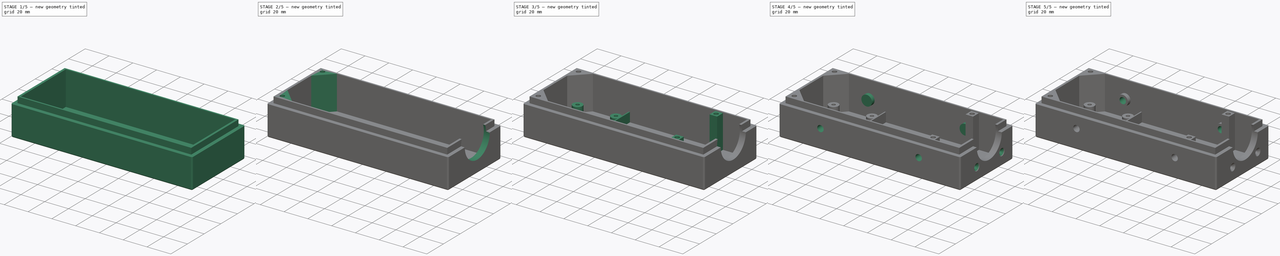
[diagram: build sequence overview — one tinted view per stage of 5, left to right]
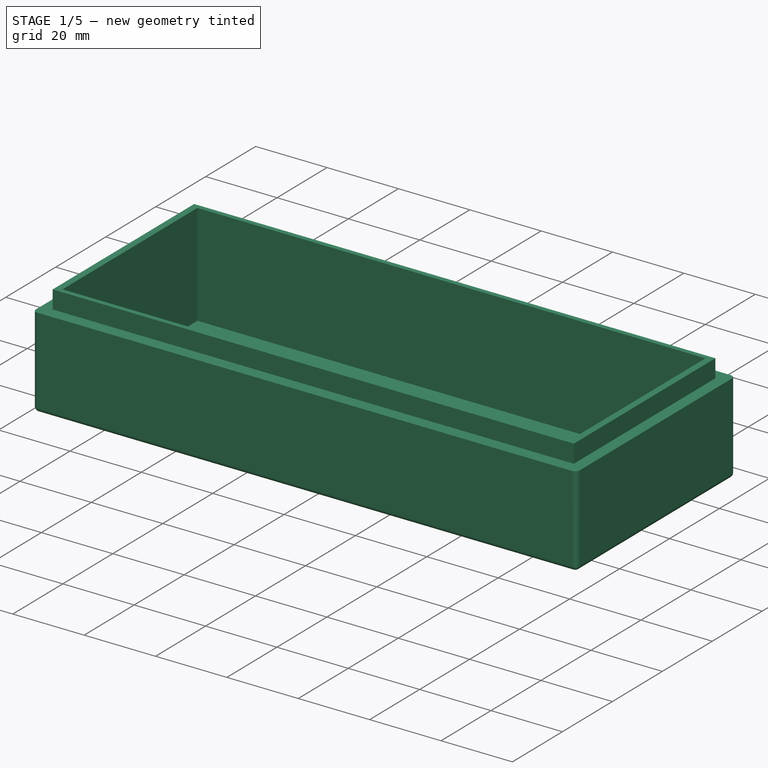
[diagram: stage 1 of 5 — iso view after this stage's code; geometry added in this stage tinted green]
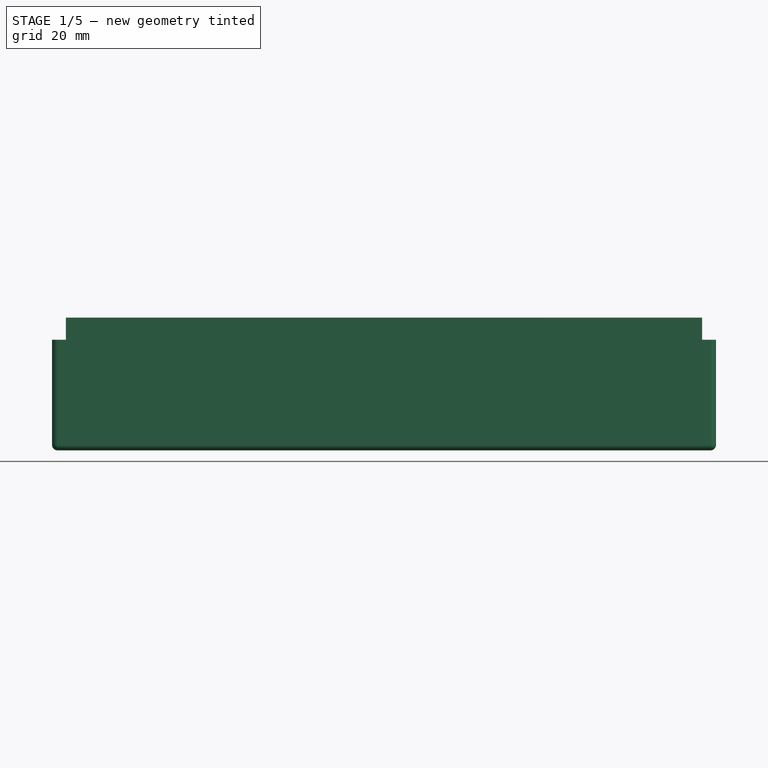
[diagram: stage 1 of 5 — front view after this stage's code; geometry added in this stage tinted green]
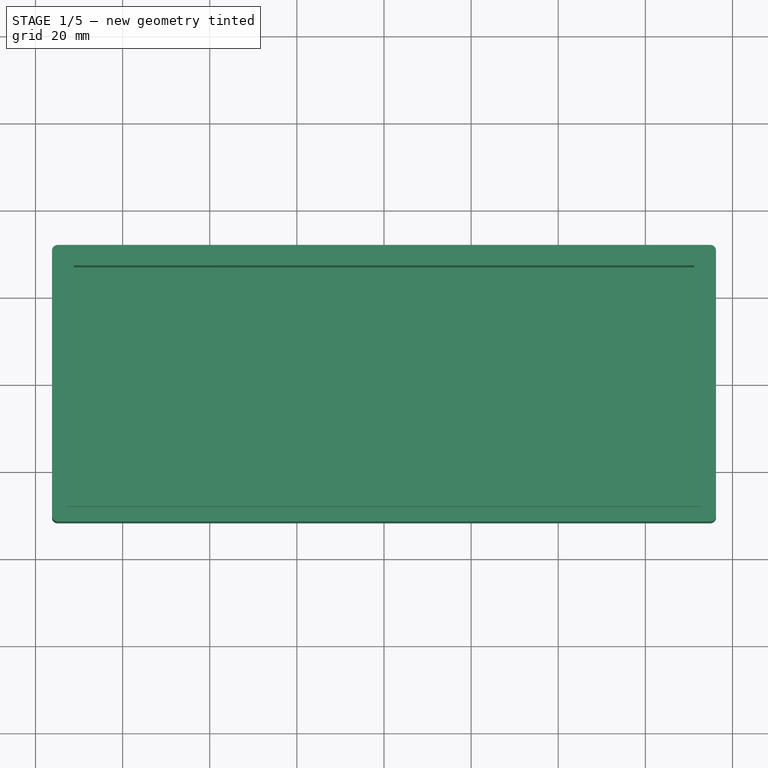
[diagram: stage 1 of 5 — top view after this stage's code; geometry added in this stage tinted green]
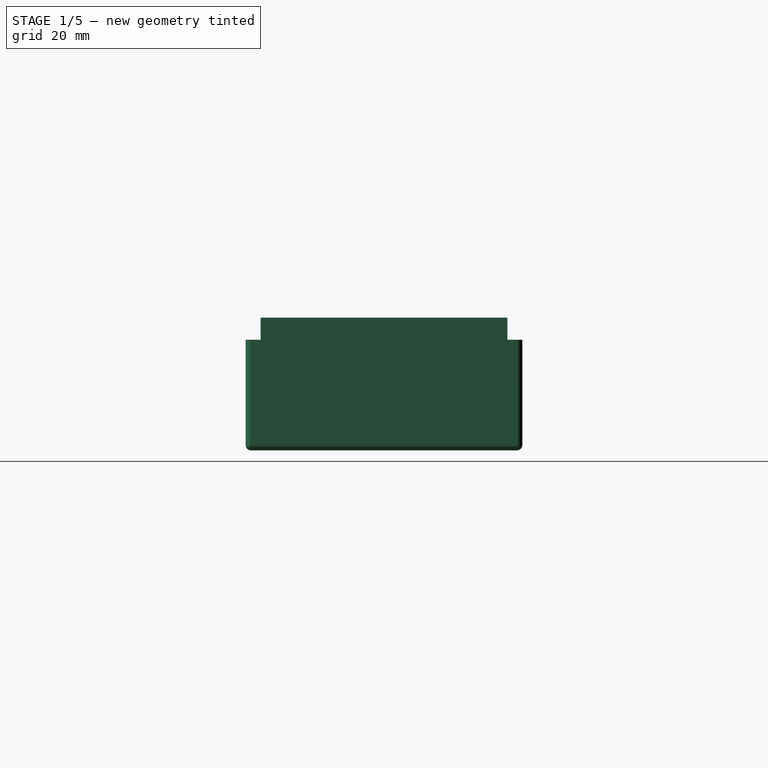
[diagram: stage 1 of 5 — right view after this stage's code; geometry added in this stage tinted green]
FCSTD DOCUMENT  (FreeCAD 1.0R39109 (Git))
Label: RiserTop3
License: All rights reserved
LicenseURL: https://en.wikipedia.org/wiki/All_rights_reserved
objects: Sketcher::SketchObject×19, PartDesign::Pad×8, PartDesign::Hole×6, PartDesign::Pocket×5, PartDesign::Fillet×1, PartDesign::Chamfer×1, PartDesign::Body×1
note: 102 computed .brp shape members not serialized (recipe doc carries the construction recipe); baked Part::Feature solids carry a one-line shape summary decoded from their .brp

FEATURE [Sketcher::SketchObject] Sketch
  ArcFitTolerance = 1e-06
  AttachmentSupport = -> [XY_Plane]
  FullyConstrained = true
  MakeInternals = false
  MapMode = 5
  sketch-geometry (4):
    g0: LineSegment StartX=-76.2 StartY=31.75 StartZ=0 EndX=-76.2 EndY=-31.75 EndZ=0
    g1: LineSegment StartX=-76.2 StartY=-31.75 StartZ=0 EndX=76.2 EndY=-31.75 EndZ=0
    g2: LineSegment StartX=76.2 StartY=-31.75 StartZ=0 EndX=76.2 EndY=31.75 EndZ=0
    g3: LineSegment StartX=76.2 StartY=31.75 StartZ=0 EndX=-76.2 EndY=31.75 EndZ=0
  constraints (11):
    c: Coincident(g0,g1)
    c: Coincident(g1,g2)
    c: Coincident(g2,g3)
    c: Coincident(g3,g0)
    c: Vertical(g0)
    c: Vertical(g2)
    c: Horizontal(g1)
    c: Horizontal(g3)
    c: Distance(g3,g3) = 152.4
    c: Distance(g0,g0) = 63.5
    c: Symmetric(g2,g0,g-1)
FEATURE [PartDesign::Pad] Pad
  Direction = (0,0,1)
  Length = 25.4
  Length2 = 10
  Profile = -> Sketch
  ReferenceAxis = -> Sketch [N_Axis]
  Refine = true
  Suppressed = false
  Type = 0
FEATURE [Sketcher::SketchObject] Sketch001
  ArcFitTolerance = 1e-06
  AttachmentSupport = -> [Pad]
  FullyConstrained = true
  MakeInternals = false
  MapMode = 5
  Placement = pos=(0,0,25.4) rot=(0,0,1;0rad)
  sketch-geometry (4):
    g0: LineSegment StartX=-73.025 StartY=28.321 StartZ=0 EndX=-73.025 EndY=-28.321 EndZ=0
    g1: LineSegment StartX=-73.025 StartY=-28.321 StartZ=0 EndX=73.025 EndY=-28.321 EndZ=0
    g2: LineSegment StartX=73.025 StartY=-28.321 StartZ=0 EndX=73.025 EndY=28.321 EndZ=0
    g3: LineSegment StartX=73.025 StartY=28.321 StartZ=0 EndX=-73.025 EndY=28.321 EndZ=0
  constraints (11):
    c: Coincident(g0,g1)
    c: Coincident(g1,g2)
    c: Coincident(g2,g3)
    c: Coincident(g3,g0)
    c: Vertical(g0)
    c: Vertical(g2)
    c: Horizontal(g1)
    c: Horizontal(g3)
    c: Distance(g3,g3) = 146.05
    c: Distance(g0,g0) = 56.642
    c: Symmetric(g2,g0,g-1)
FEATURE [PartDesign::Pad] Pad001
  BaseFeature = -> Pad
  Direction = (0,0,1)
  Length = 5.08
  Length2 = 10
  Profile = -> Sketch001
  ReferenceAxis = -> Sketch001 [N_Axis]
  Refine = true
  Suppressed = false
  Type = 0
FEATURE [Sketcher::SketchObject] Sketch002
  ArcFitTolerance = 1e-06
  AttachmentSupport = -> [Pad001]
  FullyConstrained = true
  MakeInternals = false
  MapMode = 5
  Placement = pos=(0,0,30.48) rot=(0,0,1;0rad)
  sketch-geometry (4):
    g0: LineSegment StartX=-71.1835 StartY=26.9875 StartZ=0 EndX=-71.1835 EndY=-26.9875 EndZ=0
    g1: LineSegment StartX=-71.1835 StartY=-26.9875 StartZ=0 EndX=71.1835 EndY=-26.9875 EndZ=0
    g2: LineSegment StartX=71.1835 StartY=-26.9875 StartZ=0 EndX=71.1835 EndY=26.9875 EndZ=0
    g3: LineSegment StartX=71.1835 StartY=26.9875 StartZ=0 EndX=-71.1835 EndY=26.9875 EndZ=0
  constraints (11):
    c: Coincident(g0,g1)
    c: Coincident(g1,g2)
    c: Coincident(g2,g3)
    c: Coincident(g3,g0)
    c: Vertical(g0)
    c: Vertical(g2)
    c: Horizontal(g1)
    c: Horizontal(g3)
    c: Distance(g3,g3) = 142.367
    c: Distance(g0,g0) = 53.975
    c: Symmetric(g2,g0,g-1)
FEATURE [PartDesign::Pocket] Pocket
  BaseFeature = -> Pad001
  Direction = (0,0,-1)
  Length = 28.575
  Length2 = 5
  Profile = -> Sketch002
  ReferenceAxis = -> Sketch002 [N_Axis]
  Refine = true
  Suppressed = false
  Type = 0
FEATURE [PartDesign::Fillet] Fillet
  Base = -> Pocket [Edge6,Edge3,Edge9,Edge11,Edge1,Edge5,Edge8,Edge2]
  BaseFeature = -> Pocket
  Radius = 1.27
  Refine = true
  SupportTransform = false
  Suppressed = false
  UseAllEdges = false
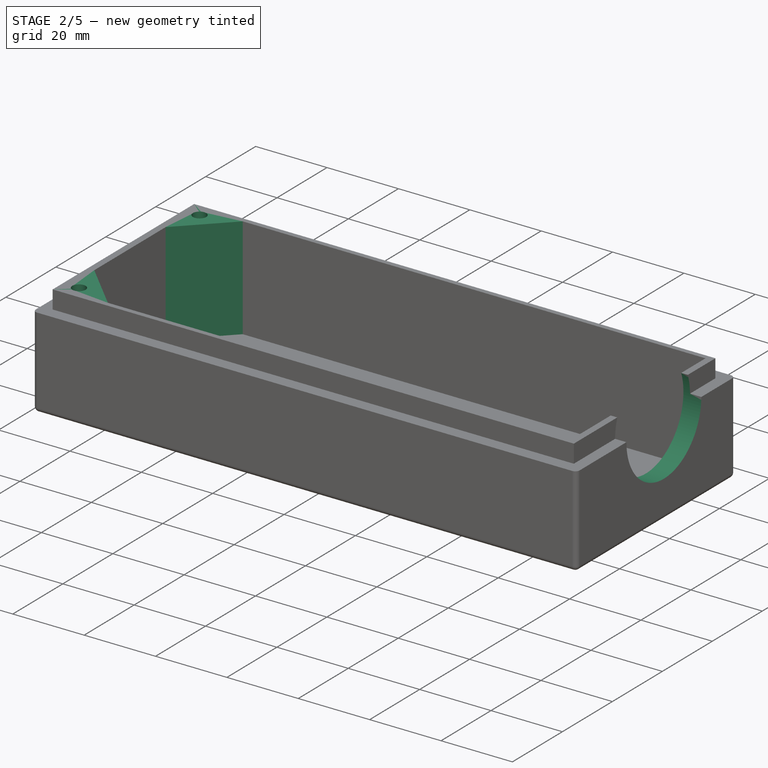
[diagram: stage 2 of 5 — iso view after this stage's code; geometry added in this stage tinted green]
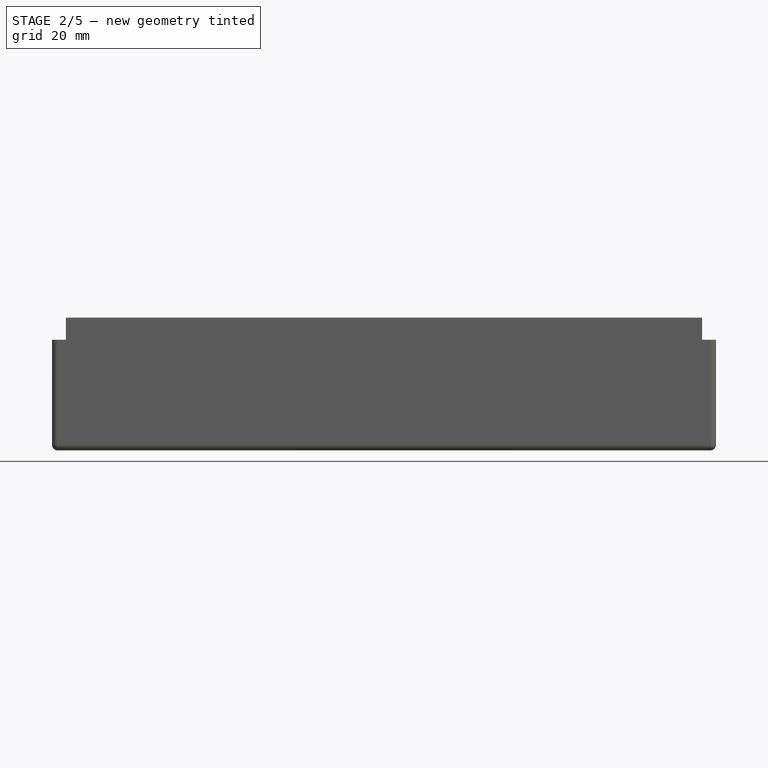
[diagram: stage 2 of 5 — front view after this stage's code; geometry added in this stage tinted green]
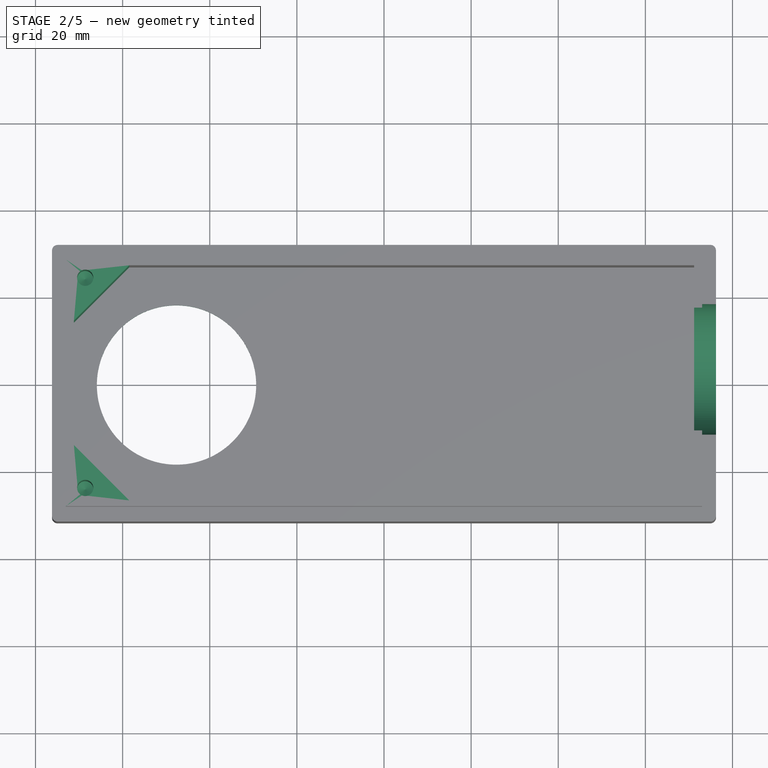
[diagram: stage 2 of 5 — top view after this stage's code; geometry added in this stage tinted green]
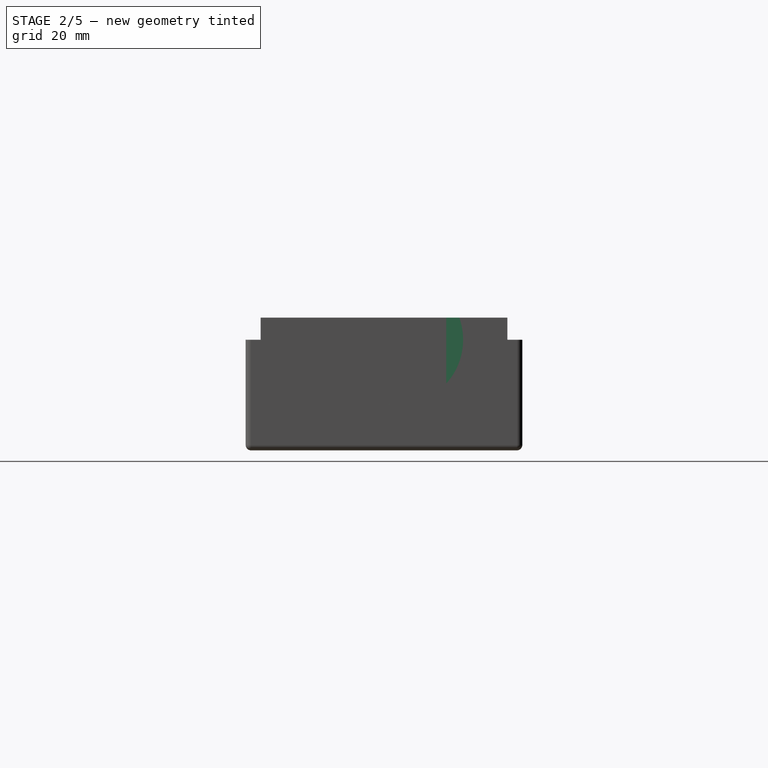
[diagram: stage 2 of 5 — right view after this stage's code; geometry added in this stage tinted green]
FEATURE [PartDesign::Chamfer] Chamfer
  Angle = 45
  Base = -> Fillet [Edge57,Edge58]
  BaseFeature = -> Fillet
  ChamferType = 0
  FlipDirection = false
  Refine = true
  Size = 12.7
  Size2 = 1
  SupportTransform = false
  Suppressed = false
  UseAllEdges = false
FEATURE [Sketcher::SketchObject] Sketch003
  ArcFitTolerance = 1e-06
  AttachmentSupport = -> [Chamfer]
  ExternalGeometry = -> [Chamfer]
  FullyConstrained = true
  MakeInternals = false
  MapMode = 5
  Placement = pos=(0,0,30.48) rot=(0,0,1;0rad)
  sketch-geometry (2):
    g0: Circle CenterX=-68.58 CenterY=24.13 CenterZ=0 NormalX=0 NormalY=0 NormalZ=1 AngleXU=0 Radius=1.8669
    g1: Circle CenterX=-68.58 CenterY=-24.13 CenterZ=0 NormalX=0 NormalY=0 NormalZ=1 AngleXU=0 Radius=1.8669
  constraints (6):
    c: Diameter(g0) = 3.7338
    c: Diameter(g1) = 3.7338
    c: DistanceX(g-3,g0) = 7.62
    c: DistanceX(g-3,g1) = 7.62
    c: DistanceY(g-5,g1) = 7.62
    c: DistanceY(g0,g-4) = 7.62
FEATURE [PartDesign::Hole] Hole
  BaseFeature = -> Chamfer
  CustomThreadClearance = 0
  Depth = 19.05
  DepthType = 0
  Diameter = 3.7338
  DrillForDepth = false
  DrillPoint = 1
  DrillPointAngle = 118
  HoleCutCountersinkAngle = 90
  HoleCutCustomValues = false
  HoleCutDepth = 0
  HoleCutDiameter = 5.4356
  HoleCutType = 0
  ModelThread = false
  Profile = -> Sketch003
  Refine = true
  Suppressed = false
  Tapered = false
  TaperedAngle = 90
  ThreadClass = 0
  ThreadDepth = 19.05
  ThreadDepthType = 0
  ThreadDirection = 0
  ThreadFit = 0
  ThreadSize = 0
  ThreadType = 0
  Threaded = false
  UseCustomThreadClearance = false
FEATURE [Sketcher::SketchObject] Sketch004
  ArcFitTolerance = 1e-06
  AttachmentSupport = -> [Hole]
  ExternalGeometry = -> [Hole]
  FullyConstrained = true
  MakeInternals = false
  MapMode = 5
  Placement = pos=(76.2,0,0) rot=(0.57735,0.57735,0.57735;2.0944rad)
  sketch-geometry (1):
    g0: Circle CenterX=3.175 CenterY=25.4 CenterZ=0 NormalX=0 NormalY=0 NormalZ=1 AngleXU=0 Radius=14.986
  constraints (3):
    c: Diameter(g0) = 29.972
    c: DistanceX(g0,g-1) = -3.175
    c: DistanceY(g0,g-3) = 0
FEATURE [PartDesign::Pocket] Pocket001
  BaseFeature = -> Hole
  Direction = (-1,0,0)
  Length = 12.7
  Length2 = 5
  Profile = -> Sketch004
  ReferenceAxis = -> Sketch004 [N_Axis]
  Refine = true
  Suppressed = false
  Type = 0
FEATURE [Sketcher::SketchObject] Sketch005
  ArcFitTolerance = 1e-06
  AttachmentSupport = -> [Pocket001]
  ExternalGeometry = -> [Pocket001]
  FullyConstrained = true
  MakeInternals = false
  MapMode = 5
  Placement = pos=(0,0,0) rot=(1,0,0;3.14159rad)
  sketch-geometry (4):
    g0: LineSegment StartX=-22.352 StartY=9.8044 StartZ=0 EndX=-22.352 EndY=-9.8044 EndZ=0
    g1: LineSegment StartX=-22.352 StartY=-9.8044 StartZ=0 EndX=38.1 EndY=-9.8044 EndZ=0
    g2: LineSegment StartX=38.1 StartY=-9.8044 StartZ=0 EndX=38.1 EndY=9.8044 EndZ=0
    g3: LineSegment StartX=38.1 StartY=9.8044 StartZ=0 EndX=-22.352 EndY=9.8044 EndZ=0
  constraints (12):
    c: Coincident(g0,g1)
    c: Coincident(g1,g2)
    c: Coincident(g2,g3)
    c: Coincident(g3,g0)
    c: Vertical(g0)
    c: Vertical(g2)
    c: Horizontal(g1)
    c: Horizontal(g3)
    c: Distance(g0,g0) = 19.6088
    c: Distance(g1,g1) = 60.452
    c: DistanceY(g-1,g0) = 9.8044
    c: DistanceX(g2,g-3) = 38.1
FEATURE [Sketcher::SketchObject] Sketch006
  ArcFitTolerance = 1e-06
  FullyConstrained = true
  MakeInternals = false
  MapMode = 5
  Placement = pos=(0,0,0) rot=(1,0,0;3.14159rad)
  sketch-geometry (1):
    g0: Circle CenterX=-47.625 CenterY=0 CenterZ=0 NormalX=0 NormalY=0 NormalZ=1 AngleXU=0 Radius=18.288
  constraints (3):
    c: Diameter(g0) = 36.576
    c: DistanceY(g-1,g0) = 0
    c: DistanceX(g-4,g0) = 28.575
FEATURE [PartDesign::Pocket] Pocket003
  BaseFeature = -> Pocket001
  Direction = (0,0,1)
  Length = 5.0038
  Length2 = 5
  Profile = -> Sketch006
  ReferenceAxis = -> Sketch006 [N_Axis]
  Refine = true
  Suppressed = false
  Type = 0
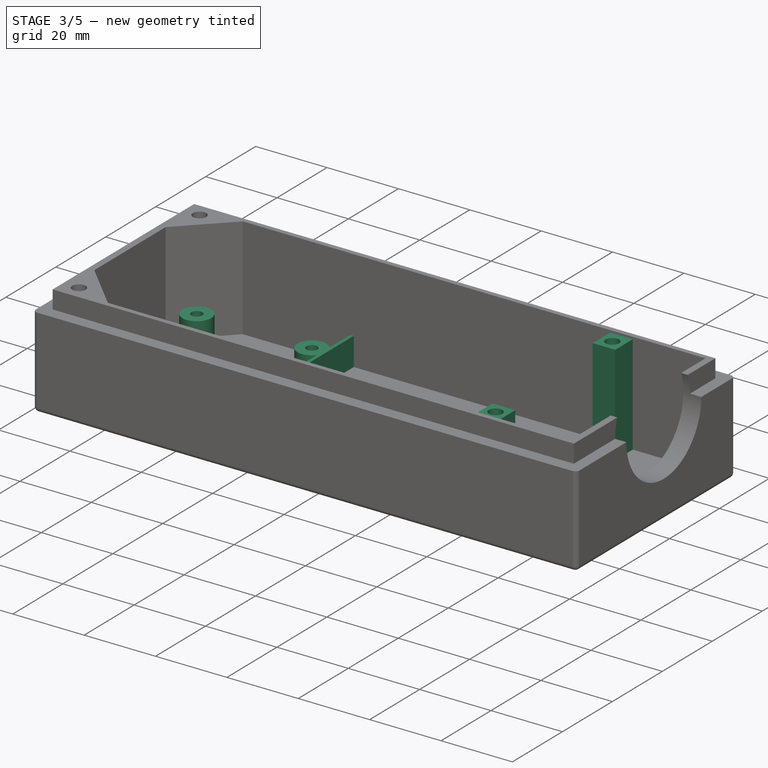
[diagram: stage 3 of 5 — iso view after this stage's code; geometry added in this stage tinted green]
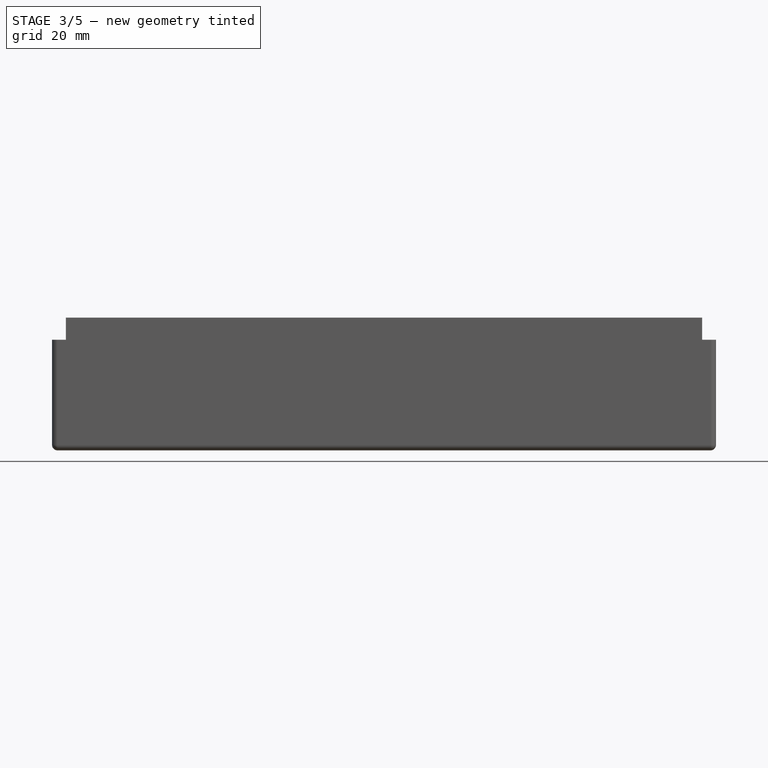
[diagram: stage 3 of 5 — front view after this stage's code; geometry added in this stage tinted green]
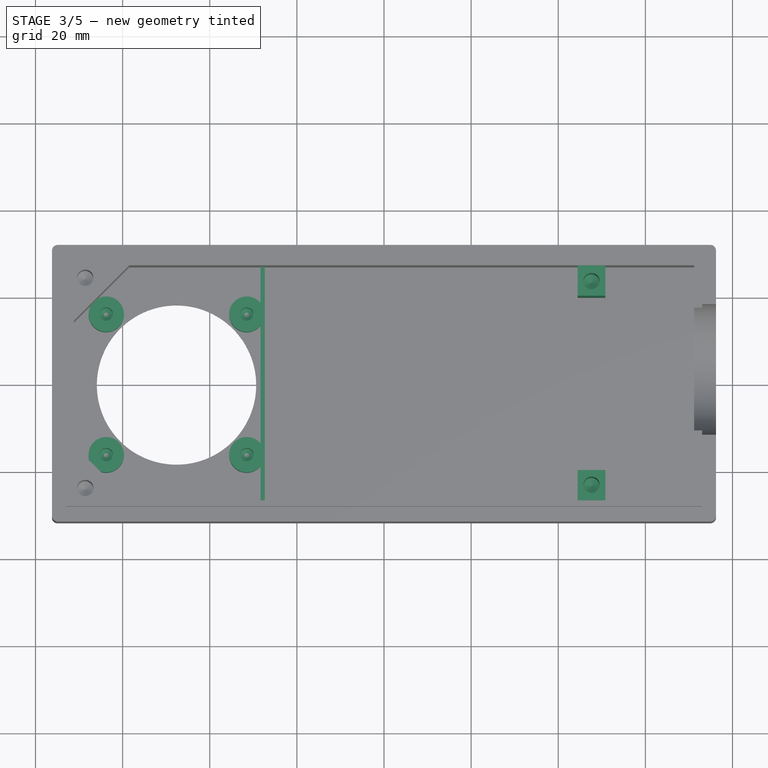
[diagram: stage 3 of 5 — top view after this stage's code; geometry added in this stage tinted green]
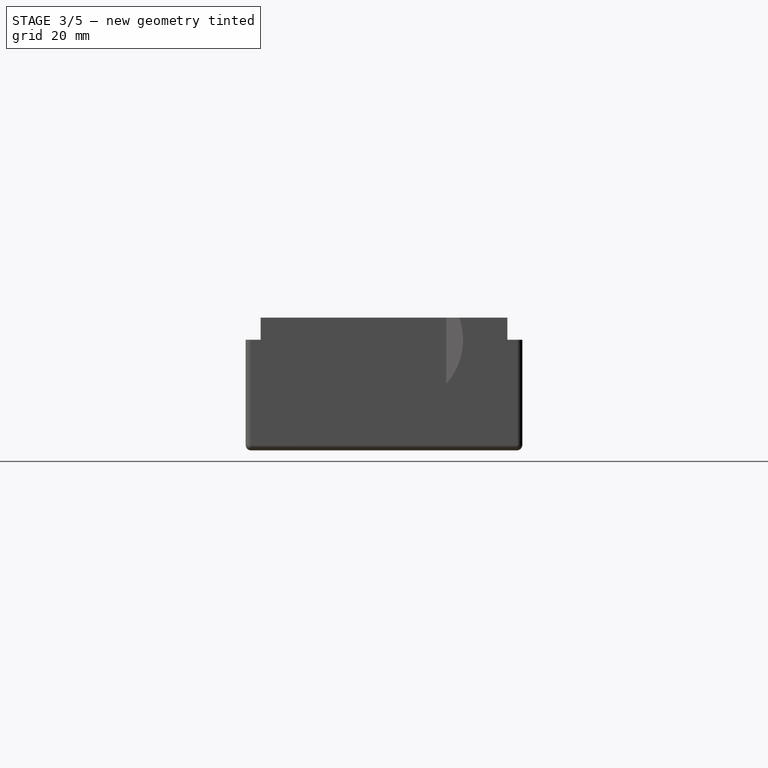
[diagram: stage 3 of 5 — right view after this stage's code; geometry added in this stage tinted green]
FEATURE [Sketcher::SketchObject] Sketch007
  ArcFitTolerance = 1e-06
  AttachmentSupport = -> [Pocket003]
  ExternalGeometry = -> [Pocket003]
  FullyConstrained = true
  MakeInternals = false
  MapMode = 5
  Placement = pos=(0,0,1.905) rot=(0,0,1;0rad)
  sketch-geometry (4):
    g0: Circle CenterX=-63.754 CenterY=16.129 CenterZ=0 NormalX=0 NormalY=0 NormalZ=1 AngleXU=0 Radius=4.064
    g1: Circle CenterX=-31.496 CenterY=16.129 CenterZ=0 NormalX=0 NormalY=0 NormalZ=1 AngleXU=0 Radius=4.064
    g2: Circle CenterX=-31.496 CenterY=-16.129 CenterZ=0 NormalX=0 NormalY=0 NormalZ=1 AngleXU=0 Radius=4.064
    g3: Circle CenterX=-63.754 CenterY=-16.129 CenterZ=0 NormalX=0 NormalY=0 NormalZ=1 AngleXU=0 Radius=4.064
  constraints (12):
    c: Diameter(g1) = 8.128
    c: Diameter(g0) = 8.128
    c: Diameter(g3) = 8.128
    c: Diameter(g2) = 8.128
    c: DistanceX(g0,g1) = 32.258
    c: DistanceX(g3,g2) = 32.258
    c: DistanceY(g2,g3) = 0
    c: DistanceY(g0,g1) = 0
    c: DistanceY(g2,g1) = 32.258
    c: DistanceX(g0,g3) = 0
    c: DistanceX(g-3,g1) = 16.129
    c: DistanceY(g-3,g1) = 16.129
FEATURE [PartDesign::Pad] Pad002
  BaseFeature = -> Pocket003
  Direction = (0,0,1)
  Length = 7.8994
  Length2 = 10
  Profile = -> Sketch007
  ReferenceAxis = -> Sketch007 [N_Axis]
  Refine = true
  Suppressed = false
  Type = 0
FEATURE [Sketcher::SketchObject] Sketch008
  ArcFitTolerance = 1e-06
  AttachmentSupport = -> [Pad002]
  ExternalGeometry = -> [Pad002]
  FullyConstrained = true
  MakeInternals = false
  MapMode = 5
  Placement = pos=(0,0,9.8044) rot=(0,0,1;0rad)
  sketch-geometry (4):
    g0: Circle CenterX=-63.754 CenterY=16.129 CenterZ=0 NormalX=0 NormalY=0 NormalZ=1 AngleXU=0 Radius=1.524
    g1: Circle CenterX=-31.496 CenterY=16.129 CenterZ=0 NormalX=0 NormalY=0 NormalZ=1 AngleXU=0 Radius=1.524
    g2: Circle CenterX=-31.496 CenterY=-16.129 CenterZ=0 NormalX=0 NormalY=0 NormalZ=1 AngleXU=0 Radius=1.524
    g3: Circle CenterX=-63.754 CenterY=-16.129 CenterZ=0 NormalX=0 NormalY=0 NormalZ=1 AngleXU=0 Radius=1.524
  constraints (12):
    c: Diameter(g0) = 3.048
    c: Diameter(g1) = 3.048
    c: Diameter(g2) = 3.048
    c: Diameter(g3) = 3.048
    c: DistanceX(g0,g-3) = 0
    c: DistanceX(g1,g-4) = 0
    c: DistanceX(g2,g-5) = 0
    c: DistanceX(g3,g-6) = 0
    c: DistanceY(g-6,g3) = 0
    c: DistanceY(g-5,g2) = 0
    c: DistanceY(g-4,g1) = 0
    c: DistanceY(g-3,g0) = 0
FEATURE [PartDesign::Hole] Hole001
  BaseFeature = -> Pad002
  CustomThreadClearance = 0
  Depth = 8.89
  DepthType = 0
  Diameter = 3.048
  DrillForDepth = false
  DrillPoint = 1
  DrillPointAngle = 118
  HoleCutCountersinkAngle = 90
  HoleCutCustomValues = false
  HoleCutDepth = 0
  HoleCutDiameter = 0
  HoleCutType = 0
  ModelThread = false
  Profile = -> Sketch008
  Refine = true
  Suppressed = false
  Tapered = false
  TaperedAngle = 90
  ThreadClass = 0
  ThreadDepth = 8.89
  ThreadDepthType = 0
  ThreadDirection = 0
  ThreadFit = 0
  ThreadSize = 0
  ThreadType = 0
  Threaded = false
  UseCustomThreadClearance = false
FEATURE [Sketcher::SketchObject] Sketch009
  ArcFitTolerance = 1e-06
  AttachmentSupport = -> [Hole001]
  FullyConstrained = true
  MakeInternals = false
  MapMode = 5
  Placement = pos=(0,0,1.905) rot=(0,0,1;0rad)
  sketch-geometry (4):
    g0: LineSegment StartX=-24.765 StartY=13.9954 StartZ=0 EndX=-24.765 EndY=-13.9446 EndZ=0
    g1: LineSegment StartX=-24.765 StartY=-13.9446 StartZ=0 EndX=40.64 EndY=-13.9446 EndZ=0
    g2: LineSegment StartX=40.64 StartY=-13.9446 StartZ=0 EndX=40.64 EndY=13.9954 EndZ=0
    g3: LineSegment StartX=40.64 StartY=13.9954 StartZ=0 EndX=-24.765 EndY=13.9954 EndZ=0
  constraints (12):
    c: Coincident(g0,g1)
    c: Coincident(g1,g2)
    c: Coincident(g2,g3)
    c: Coincident(g3,g0)
    c: Vertical(g0)
    c: Vertical(g2)
    c: Horizontal(g1)
    c: Horizontal(g3)
    c: Distance(g3,g3) = 65.405
    c: Distance(g2,g2) = 27.94
    c: DistanceY(g-4,g2) = 4.191
    c: DistanceX(g-4,g2) = 2.54
FEATURE [Sketcher::SketchObject] Sketch010
  ArcFitTolerance = 1e-06
  FullyConstrained = false
  MakeInternals = false
  MapMode = 5
  Placement = pos=(0,0,1.905) rot=(0,0,1;0rad)
  sketch-geometry (4):
    g0: LineSegment StartX=-28.3336 StartY=26.9875 StartZ=0 EndX=-28.3336 EndY=-26.9875 EndZ=0
    g1: LineSegment StartX=-28.3336 StartY=-26.9875 StartZ=0 EndX=-27.3748 EndY=-26.9875 EndZ=0
    g2: LineSegment StartX=-27.3748 StartY=-26.9875 StartZ=0 EndX=-27.3748 EndY=26.9875 EndZ=0
    g3: LineSegment StartX=-27.3748 StartY=26.9875 StartZ=0 EndX=-28.3336 EndY=26.9875 EndZ=0
  constraints (10):
    c: Coincident(g0,g1)
    c: Coincident(g1,g2)
    c: Coincident(g2,g3)
    c: Coincident(g3,g0)
    c: Vertical(g0)
    c: Vertical(g2)
    c: Horizontal(g1)
    c: Horizontal(g3)
    c: DistanceY(g0,g-3) = 0
    c: DistanceY(g-4,g0) = 0
FEATURE [PartDesign::Pad] Pad003
  BaseFeature = -> Hole001
  Direction = (0,0,1)
  Length = 7.8994
  Length2 = 10
  Profile = -> Sketch010
  ReferenceAxis = -> Sketch010 [N_Axis]
  Refine = true
  Suppressed = false
  Type = 0
FEATURE [Sketcher::SketchObject] Sketch011
  ArcFitTolerance = 1e-06
  AttachmentSupport = -> [Pad003]
  ExternalGeometry = -> [Pad003]
  FullyConstrained = true
  MakeInternals = false
  MapMode = 5
  Placement = pos=(0,0,1.905) rot=(0,0,1;0rad)
  sketch-geometry (8):
    g0: LineSegment StartX=44.45 StartY=26.9875 StartZ=0 EndX=44.45 EndY=20.0025 EndZ=0
    g1: LineSegment StartX=44.45 StartY=20.0025 StartZ=0 EndX=50.8 EndY=20.0025 EndZ=0
    g2: LineSegment StartX=50.8 StartY=20.0025 StartZ=0 EndX=50.8 EndY=26.9875 EndZ=0
    g3: LineSegment StartX=50.8 StartY=26.9875 StartZ=0 EndX=44.45 EndY=26.9875 EndZ=0
    g4: LineSegment StartX=44.45 StartY=-20.0025 StartZ=0 EndX=44.45 EndY=-26.9875 EndZ=0
    g5: LineSegment StartX=44.45 StartY=-26.9875 StartZ=0 EndX=50.8 EndY=-26.9875 EndZ=0
    g6: LineSegment StartX=50.8 StartY=-26.9875 StartZ=0 EndX=50.8 EndY=-20.0025 EndZ=0
    g7: LineSegment StartX=50.8 StartY=-20.0025 StartZ=0 EndX=44.45 EndY=-20.0025 EndZ=0
  constraints (24):
    c: Coincident(g0,g1)
    c: Coincident(g1,g2)
    c: Coincident(g2,g3)
    c: Coincident(g3,g0)
    c: Vertical(g0)
    c: Vertical(g2)
    c: Horizontal(g1)
    c: Horizontal(g3)
    c: Coincident(g4,g5)
    c: Coincident(g5,g6)
    c: Coincident(g6,g7)
    c: Coincident(g7,g4)
    c: Vertical(g4)
    c: Vertical(g6)
    c: Horizontal(g5)
    c: Horizontal(g7)
    c: Distance(g3,g3) = 6.35
    c: Distance(g2,g2) = 6.985
    c: Distance(g7,g7) = 6.35
    c: Distance(g6,g6) = 6.985
    c: DistanceY(g2,g-4) = 0
    c: DistanceY(g-3,g5) = 0
    c: DistanceX(g6,g-5) = 25.4
    c: DistanceX(g1,g-7) = 25.4
FEATURE [PartDesign::Pad] Pad004
  BaseFeature = -> Pad003
  Direction = (0,0,1)
  Length = 27.94
  Length2 = 10
  Profile = -> Sketch011
  ReferenceAxis = -> Sketch011 [N_Axis]
  Refine = true
  Suppressed = false
  Type = 0
FEATURE [Sketcher::SketchObject] Sketch012
  ArcFitTolerance = 1e-06
  AttachmentSupport = -> [Pad004]
  ExternalGeometry = -> [Pad004]
  FullyConstrained = true
  MakeInternals = false
  MapMode = 5
  Placement = pos=(0,0,29.845) rot=(0,0,1;0rad)
  sketch-geometry (2):
    g0: Circle CenterX=47.625 CenterY=23.368 CenterZ=0 NormalX=0 NormalY=0 NormalZ=1 AngleXU=0 Radius=1.8669
    g1: Circle CenterX=47.625 CenterY=-23.368 CenterZ=0 NormalX=0 NormalY=0 NormalZ=1 AngleXU=0 Radius=1.8669
  constraints (6):
    c: Diameter(g1) = 3.7338
    c: Diameter(g0) = 3.7338
    c: DistanceY(g0,g-3) = 8.382
    c: DistanceY(g-4,g1) = 8.382
    c: DistanceX(g1,g-5) = 28.575
    c: DistanceX(g0,g-6) = 28.575
FEATURE [PartDesign::Hole] Hole002
  BaseFeature = -> Pad004
  CustomThreadClearance = 0
  Depth = 19.05
  DepthType = 0
  Diameter = 3.7338
  DrillForDepth = false
  DrillPoint = 1
  DrillPointAngle = 118
  HoleCutCountersinkAngle = 90
  HoleCutCustomValues = false
  HoleCutDepth = 0
  HoleCutDiameter = 3.8354
  HoleCutType = 0
  ModelThread = false
  Profile = -> Sketch012
  Refine = true
  Suppressed = false
  Tapered = false
  TaperedAngle = 90
  ThreadClass = 0
  ThreadDepth = 19.05
  ThreadDepthType = 0
  ThreadDirection = 0
  ThreadFit = 0
  ThreadSize = 0
  ThreadType = 0
  Threaded = false
  UseCustomThreadClearance = false
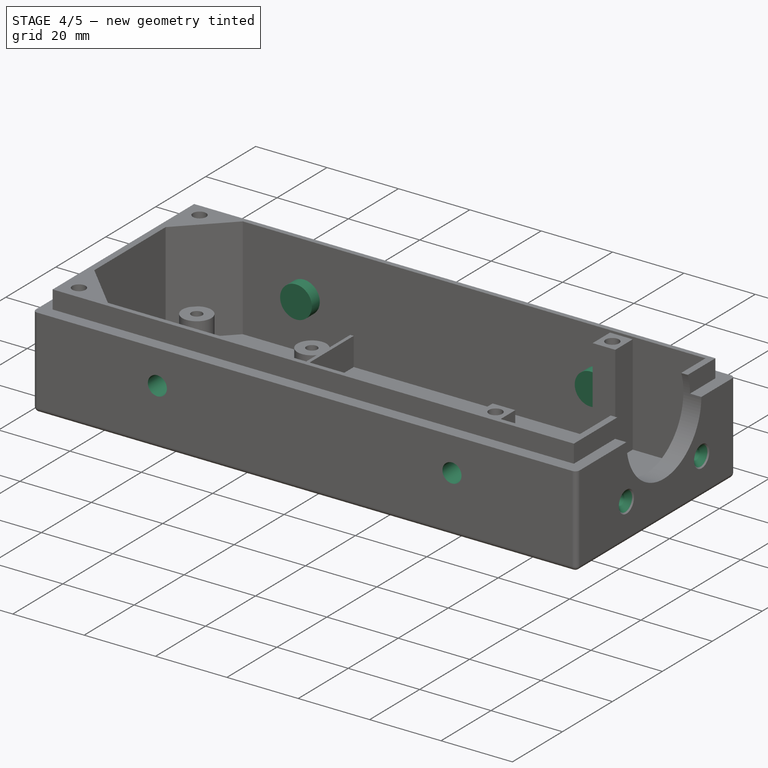
[diagram: stage 4 of 5 — iso view after this stage's code; geometry added in this stage tinted green]
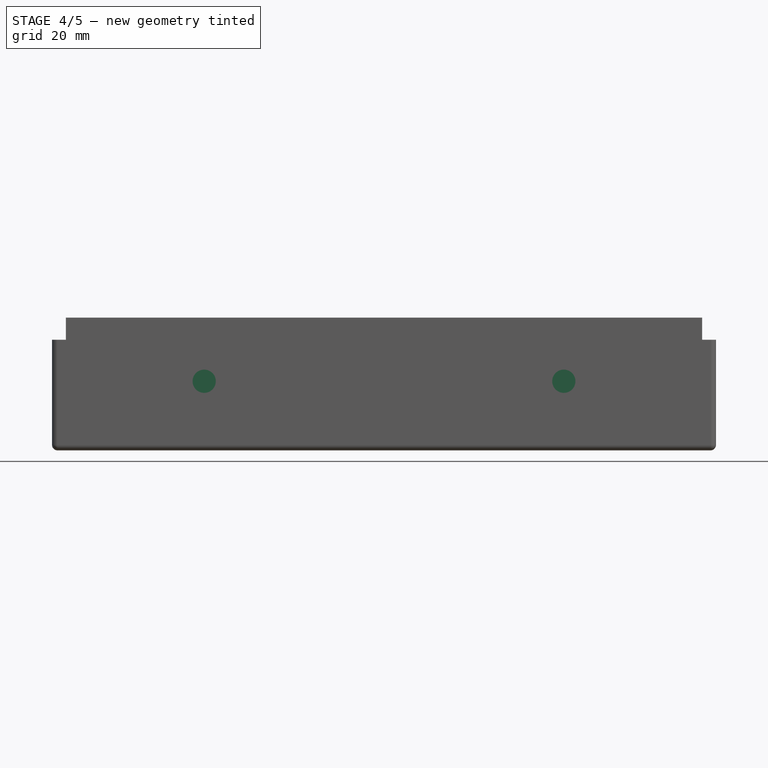
[diagram: stage 4 of 5 — front view after this stage's code; geometry added in this stage tinted green]
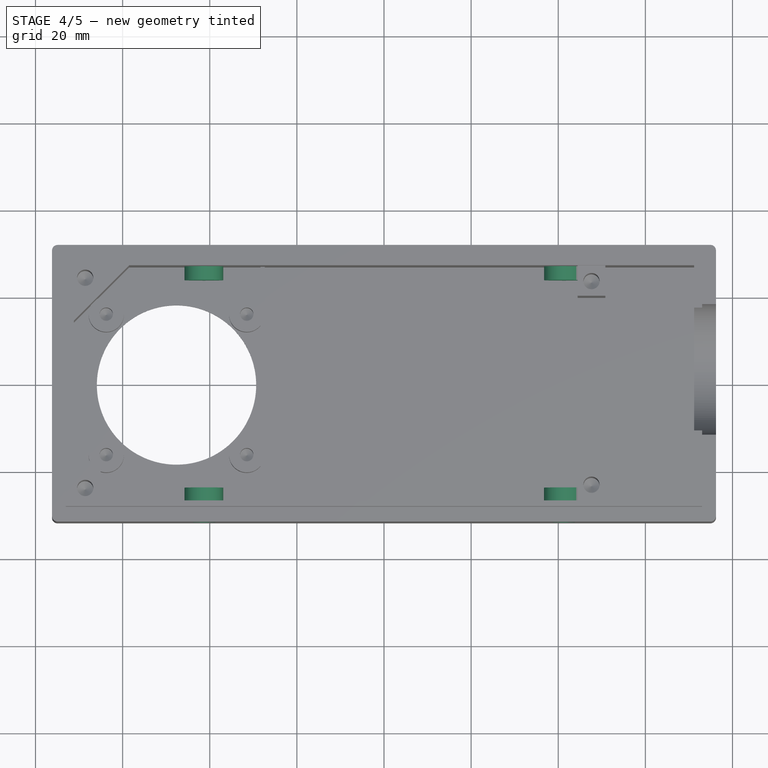
[diagram: stage 4 of 5 — top view after this stage's code; geometry added in this stage tinted green]
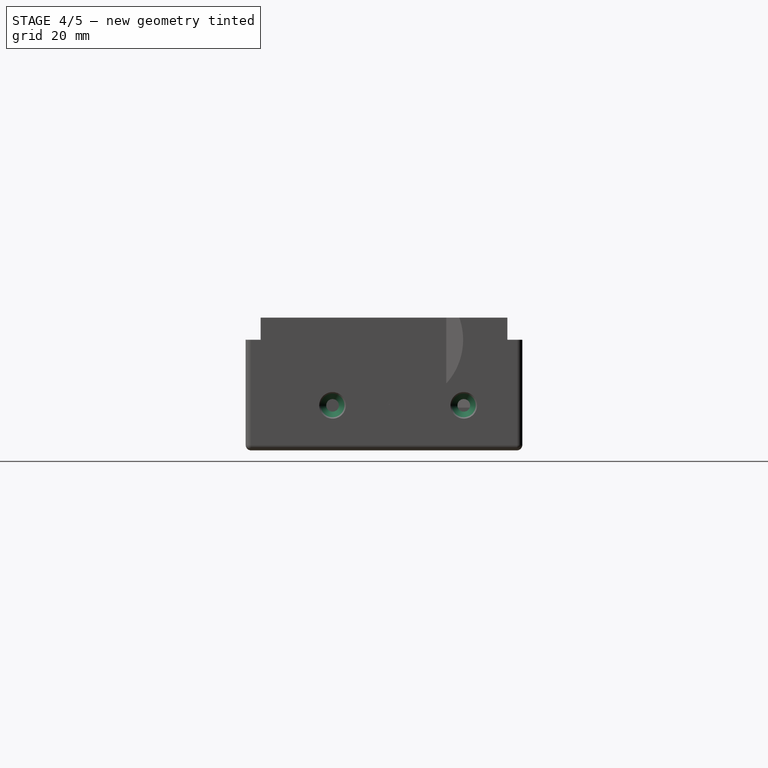
[diagram: stage 4 of 5 — right view after this stage's code; geometry added in this stage tinted green]
FEATURE [Sketcher::SketchObject] Sketch013
  ArcFitTolerance = 1e-06
  AttachmentSupport = -> [Hole002]
  ExternalGeometry = -> [Hole002]
  FullyConstrained = true
  MakeInternals = false
  MapMode = 5
  Placement = pos=(76.2,0,0) rot=(0.57735,0.57735,0.57735;2.0944rad)
  sketch-geometry (2):
    g0: Circle CenterX=-11.811 CenterY=10.3378 CenterZ=0 NormalX=0 NormalY=0 NormalZ=1 AngleXU=0 Radius=1.4478
    g1: Circle CenterX=18.3134 CenterY=10.3378 CenterZ=0 NormalX=0 NormalY=0 NormalZ=1 AngleXU=0 Radius=1.4478
  constraints (6):
    c: Diameter(g1) = 2.8956
    c: Diameter(g0) = 2.8956
    c: DistanceX(g0,g1) = 30.1244
    c: DistanceY(g1,g0) = 0
    c: DistanceY(g1,g-3) = 15.0622
    c: DistanceX(g-4,g1) = 15.1384
FEATURE [PartDesign::Hole] Hole003
  BaseFeature = -> Hole002
  CustomThreadClearance = 0
  Depth = 24.9936
  DepthType = 0
  Diameter = 2.9
  DrillForDepth = false
  DrillPoint = 1
  DrillPointAngle = 118
  HoleCutCountersinkAngle = 90
  HoleCutCustomValues = false
  HoleCutDepth = 0
  HoleCutDiameter = 6.1
  HoleCutType = 2
  ModelThread = false
  Profile = -> Sketch013
  Refine = true
  Suppressed = false
  Tapered = false
  TaperedAngle = 90
  ThreadClass = 0
  ThreadDepth = 24.9936
  ThreadDepthType = 0
  ThreadDirection = 0
  ThreadFit = 0
  ThreadSize = 8
  ThreadType = 1
  Threaded = false
  UseCustomThreadClearance = false
FEATURE [Sketcher::SketchObject] Sketch015
  ArcFitTolerance = 1e-06
  FullyConstrained = false
  MakeInternals = false
  MapMode = 5
  Placement = pos=(0,-26.9875,0) rot=(0,0.707107,0.707107;3.14159rad)
  sketch-geometry (2):
    g0: Circle CenterX=-41.1775 CenterY=15.875 CenterZ=0 NormalX=0 NormalY=0 NormalZ=1 AngleXU=0 Radius=4.445
    g1: Circle CenterX=41.3424 CenterY=15.875 CenterZ=0 NormalX=0 NormalY=0 NormalZ=1 AngleXU=0 Radius=4.445
  constraints (4):
    c: Diameter(g1) = 8.89
    c: Diameter(g0) = 8.89
    c: DistanceY(g0,g-3) = 14.605
    c: DistanceY(g1,g-3) = 14.605
FEATURE [PartDesign::Pad] Pad005
  BaseFeature = -> Hole003
  Direction = (1e-16,1,-2e-16)
  Length = 3.175
  Length2 = 10
  Profile = -> Sketch015
  ReferenceAxis = -> Sketch015 [N_Axis]
  Refine = true
  Suppressed = false
  Type = 0
FEATURE [Sketcher::SketchObject] Sketch016
  ArcFitTolerance = 1e-06
  AttachmentSupport = -> [Pad005]
  ExternalGeometry = -> [Pad005]
  FullyConstrained = true
  MakeInternals = false
  MapMode = 5
  Placement = pos=(0,-31.75,0) rot=(1,0,0;1.5708rad)
  sketch-geometry (2):
    g0: Circle CenterX=-41.275 CenterY=15.875 CenterZ=0 NormalX=0 NormalY=0 NormalZ=1 AngleXU=0 Radius=1.905
    g1: Circle CenterX=41.275 CenterY=15.875 CenterZ=0 NormalX=0 NormalY=0 NormalZ=1 AngleXU=0 Radius=1.905
  constraints (6):
    c: DistanceX(g0,g1) = 82.55
    c: Diameter(g0) = 3.81
    c: Diameter(g1) = 3.81
    c: DistanceX(g-1,g1) = 41.275
    c: DistanceY(g0,g1) = 0
    c: DistanceY(g1,g-3) = 9.525
FEATURE [PartDesign::Hole] Hole004
  BaseFeature = -> Pad005
  CustomThreadClearance = 0
  Depth = 12.7
  DepthType = 0
  Diameter = 5.334
  DrillForDepth = false
  DrillPoint = 1
  DrillPointAngle = 118
  HoleCutCountersinkAngle = 90
  HoleCutCustomValues = false
  HoleCutDepth = 0
  HoleCutDiameter = 0
  HoleCutType = 0
  ModelThread = false
  Profile = -> Sketch016
  Refine = true
  Suppressed = false
  Tapered = false
  TaperedAngle = 90
  ThreadClass = 0
  ThreadDepth = 12.7
  ThreadDepthType = 0
  ThreadDirection = 0
  ThreadFit = 0
  ThreadSize = 0
  ThreadType = 0
  Threaded = false
  UseCustomThreadClearance = false
FEATURE [Sketcher::SketchObject] Sketch017
  ArcFitTolerance = 1e-06
  AttachmentSupport = -> [Hole004]
  ExternalGeometry = -> [Hole004]
  FullyConstrained = true
  MakeInternals = false
  MapMode = 5
  Placement = pos=(0,26.9875,0) rot=(1,0,0;1.5708rad)
  sketch-geometry (2):
    g0: Circle CenterX=-41.3385 CenterY=15.875 CenterZ=0 NormalX=0 NormalY=0 NormalZ=1 AngleXU=0 Radius=4.445
    g1: Circle CenterX=41.2115 CenterY=15.875 CenterZ=0 NormalX=0 NormalY=0 NormalZ=1 AngleXU=0 Radius=4.445
  constraints (6):
    c: Diameter(g1) = 8.89
    c: Diameter(g0) = 8.89
    c: DistanceY(g1,g-3) = 14.605
    c: DistanceY(g1,g0) = 0
    c: DistanceX(g0,g1) = 82.55
    c: DistanceX(g1,g-3) = 29.972
FEATURE [PartDesign::Pad] Pad006
  BaseFeature = -> Hole004
  Direction = (0,-1,2e-16)
  Length = 3.175
  Length2 = 10
  Profile = -> Sketch017
  ReferenceAxis = -> Sketch017 [N_Axis]
  Refine = true
  Suppressed = false
  Type = 0
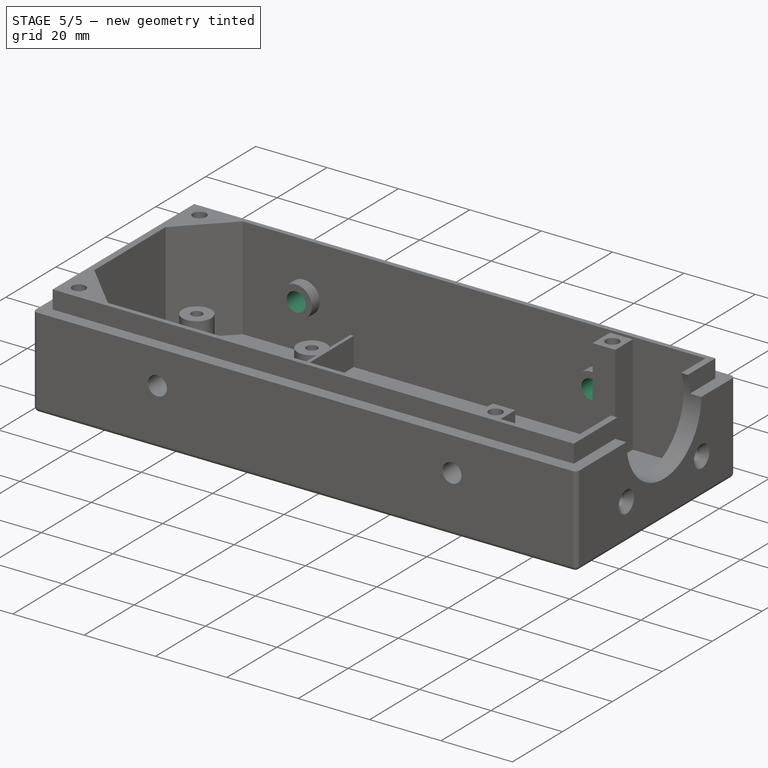
[diagram: stage 5 of 5 — iso view after this stage's code; geometry added in this stage tinted green]
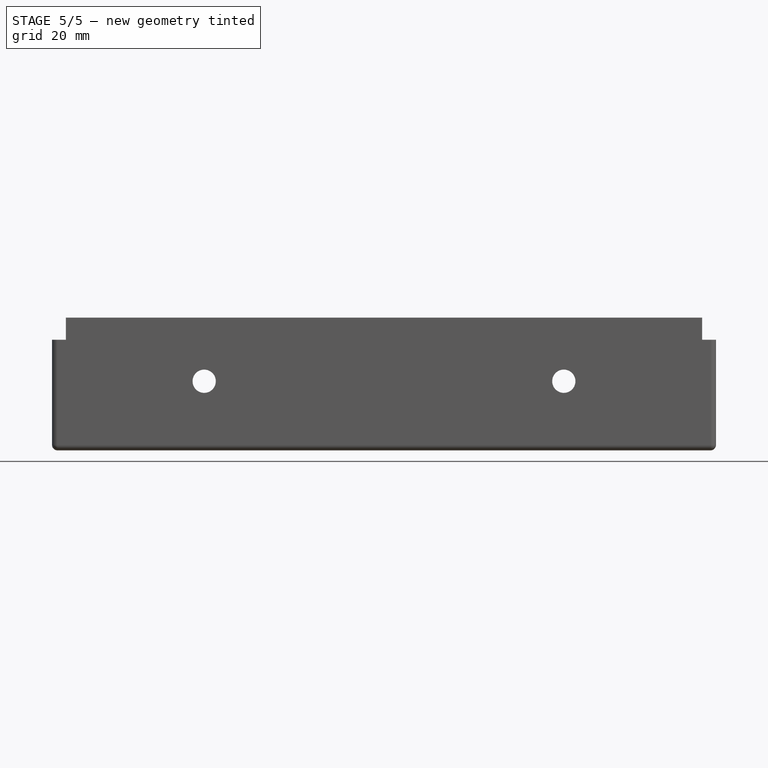
[diagram: stage 5 of 5 — front view after this stage's code; geometry added in this stage tinted green]
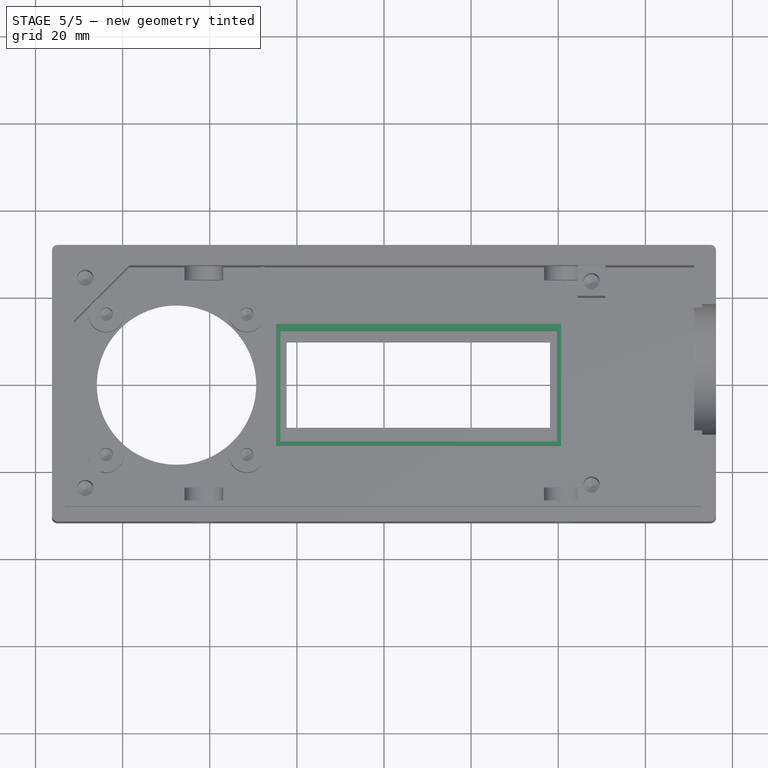
[diagram: stage 5 of 5 — top view after this stage's code; geometry added in this stage tinted green]
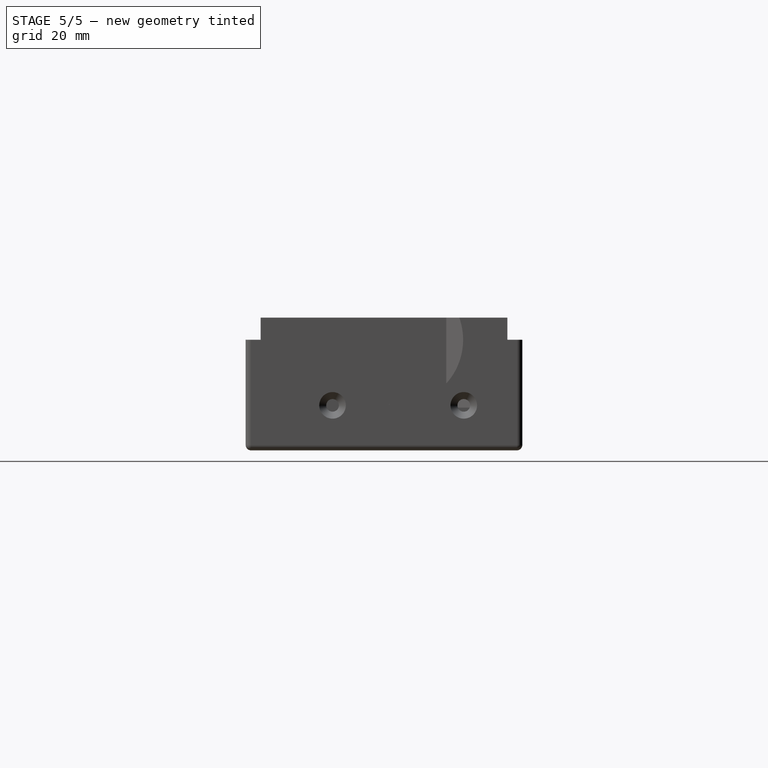
[diagram: stage 5 of 5 — right view after this stage's code; geometry added in this stage tinted green]
FEATURE [Sketcher::SketchObject] Sketch018
  ArcFitTolerance = 1e-06
  AttachmentSupport = -> [Pad006]
  ExternalGeometry = -> [Pad006]
  FullyConstrained = true
  MakeInternals = false
  MapMode = 5
  Placement = pos=(0,31.75,0) rot=(0,0.707107,0.707107;3.14159rad)
  sketch-geometry (2):
    g0: Circle CenterX=-41.275 CenterY=15.875 CenterZ=0 NormalX=0 NormalY=0 NormalZ=1 AngleXU=0 Radius=2.6543
    g1: Circle CenterX=41.275 CenterY=15.875 CenterZ=0 NormalX=0 NormalY=0 NormalZ=1 AngleXU=0 Radius=2.6543
  constraints (6):
    c: Diameter(g0) = 5.3086
    c: Diameter(g1) = 5.3086
    c: DistanceX(g0,g1) = 82.55
    c: DistanceX(g-1,g1) = 41.275
    c: DistanceY(g0,g1) = 0
    c: DistanceY(g1,g-3) = 9.525
FEATURE [PartDesign::Hole] Hole005
  BaseFeature = -> Pad006
  CustomThreadClearance = 0
  Depth = 12.7
  DepthType = 0
  Diameter = 5.334
  DrillForDepth = false
  DrillPoint = 1
  DrillPointAngle = 118
  HoleCutCountersinkAngle = 90
  HoleCutCustomValues = false
  HoleCutDepth = 0
  HoleCutDiameter = 5.4102
  HoleCutType = 0
  ModelThread = false
  Profile = -> Sketch018
  Refine = true
  Suppressed = false
  Tapered = false
  TaperedAngle = 90
  ThreadClass = 0
  ThreadDepth = 12.7
  ThreadDepthType = 0
  ThreadDirection = 0
  ThreadFit = 0
  ThreadSize = 0
  ThreadType = 0
  Threaded = false
  UseCustomThreadClearance = false
FEATURE [PartDesign::Pad] Pad007
  BaseFeature = -> Hole005
  Direction = (0,0,1)
  Length = 3.048
  Length2 = 10
  Profile = -> Sketch009
  ReferenceAxis = -> Sketch009 [N_Axis]
  Refine = true
  Suppressed = false
  Type = 0
FEATURE [PartDesign::Pocket] Pocket004
  BaseFeature = -> Pad007
  Direction = (0,0,1)
  Length = 10.16
  Length2 = 5
  Profile = -> Sketch005
  ReferenceAxis = -> Sketch005 [N_Axis]
  Refine = true
  Suppressed = false
  Type = 0
FEATURE [Sketcher::SketchObject] Sketch019
  ArcFitTolerance = 1e-06
  AttachmentSupport = -> [Pocket004]
  ExternalGeometry = -> [Pocket004]
  FullyConstrained = false
  MakeInternals = false
  MapMode = 5
  Placement = pos=(0,0,4.953) rot=(0,0,1;0rad)
  sketch-geometry (4):
    g0: LineSegment StartX=-23.7932 StartY=12.4206 StartZ=0 EndX=-23.7932 EndY=-12.9794 EndZ=0
    g1: LineSegment StartX=-23.7932 StartY=-12.9794 StartZ=0 EndX=39.7068 EndY=-12.9794 EndZ=0
    g2: LineSegment StartX=39.7068 StartY=-12.9794 StartZ=0 EndX=39.7068 EndY=12.4206 EndZ=0
    g3: LineSegment StartX=39.7068 StartY=12.4206 StartZ=0 EndX=-23.7932 EndY=12.4206 EndZ=0
  constraints (11):
    c: Coincident(g0,g1)
    c: Coincident(g1,g2)
    c: Coincident(g2,g3)
    c: Coincident(g3,g0)
    c: Vertical(g0)
    c: Vertical(g2)
    c: Horizontal(g1)
    c: Horizontal(g3)
    c: Distance(g2,g2) = 25.4
    c: Distance(g3,g3) = 63.5
    c: DistanceY(g1,g-3) = 3.175
FEATURE [PartDesign::Pocket] Pocket005
  BaseFeature = -> Pocket004
  Direction = (0,0,-1)
  Length = 3.175
  Length2 = 5
  Profile = -> Sketch019
  ReferenceAxis = -> Sketch019 [N_Axis]
  Refine = true
  Suppressed = false
  Type = 0
FEATURE [PartDesign::Body] Body
  AllowCompound = false
  Group = -> [Sketch,Pad,Sketch001,Pad001,Sketch002,Pocket,Fillet,Chamfer,Sketch003,Hole,Sketch004,Pocket001,Sketch005,Sketch006,Pocket003,Sketch007,Pad002,Sketch008,Hole001,Sketch009,Sketch010,Pad003,Sketch011,Pad004,Sketch012,Hole002,Sketch013,Hole003,Sketch015,Pad005,Sketch016,Hole004,Sketch017,Pad006,Sketch018,Hole005,Pad007,Pocket004,Sketch019,Pocket005]
  Origin = -> Origin
  Tip = -> Pocket005
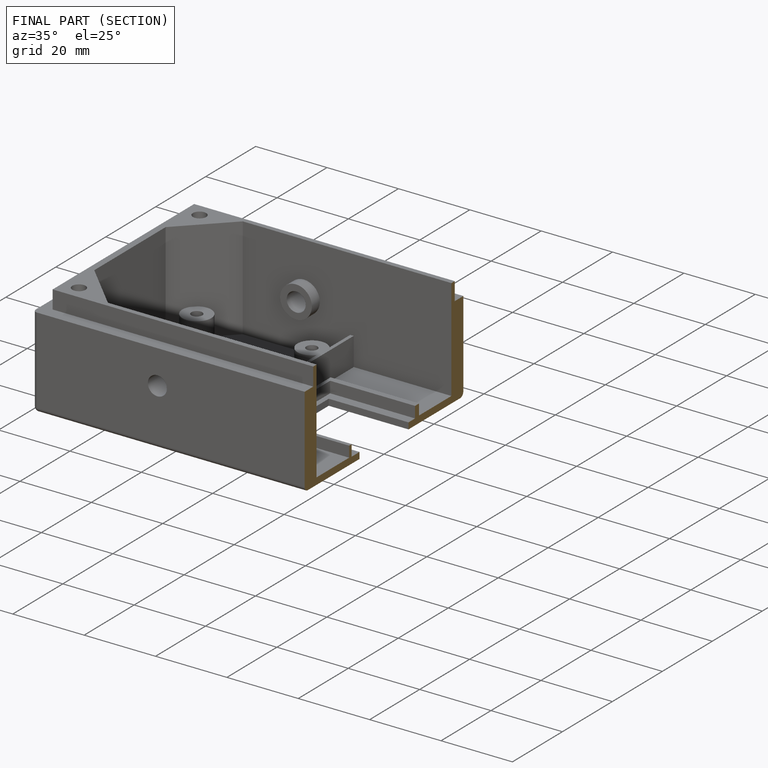
[diagram: finished part — half-section view (interior)]
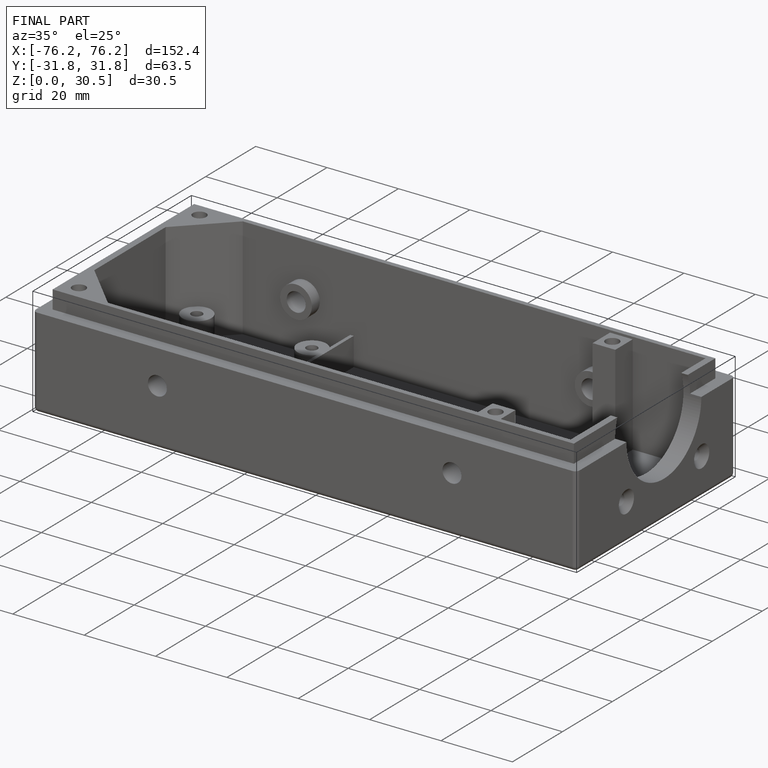
[diagram: finished part — iso view with bounding-box wireframe]
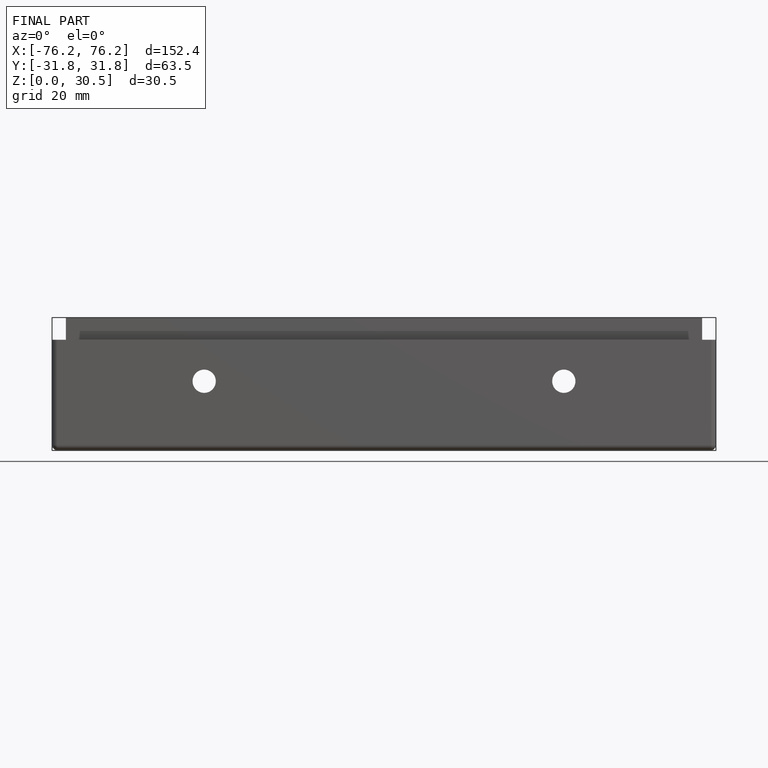
[diagram: finished part — front view with bounding-box wireframe]
